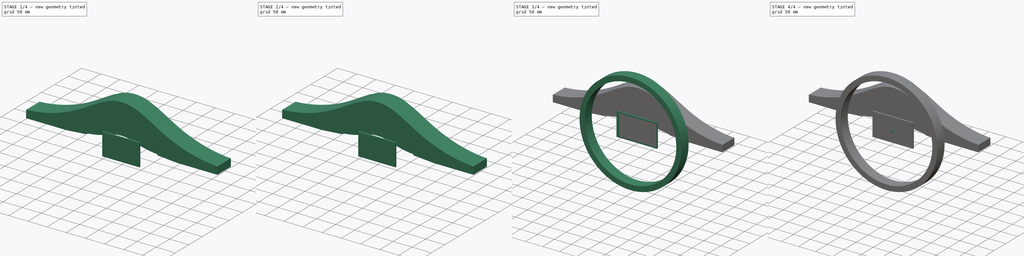
[diagram: build sequence overview — one tinted view per stage of 4, left to right]
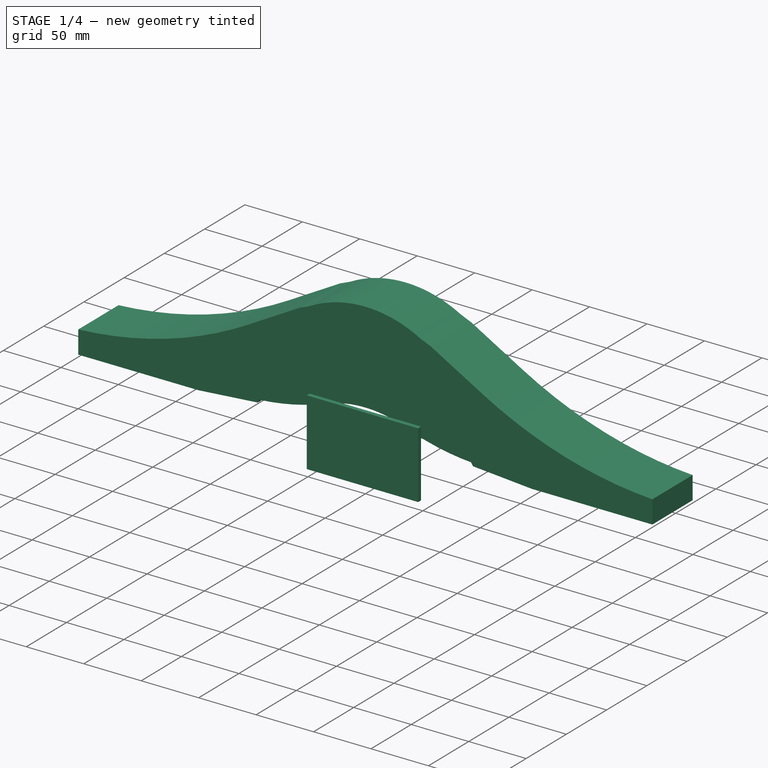
[diagram: stage 1 of 4 — iso view after this stage's code; geometry added in this stage tinted green]
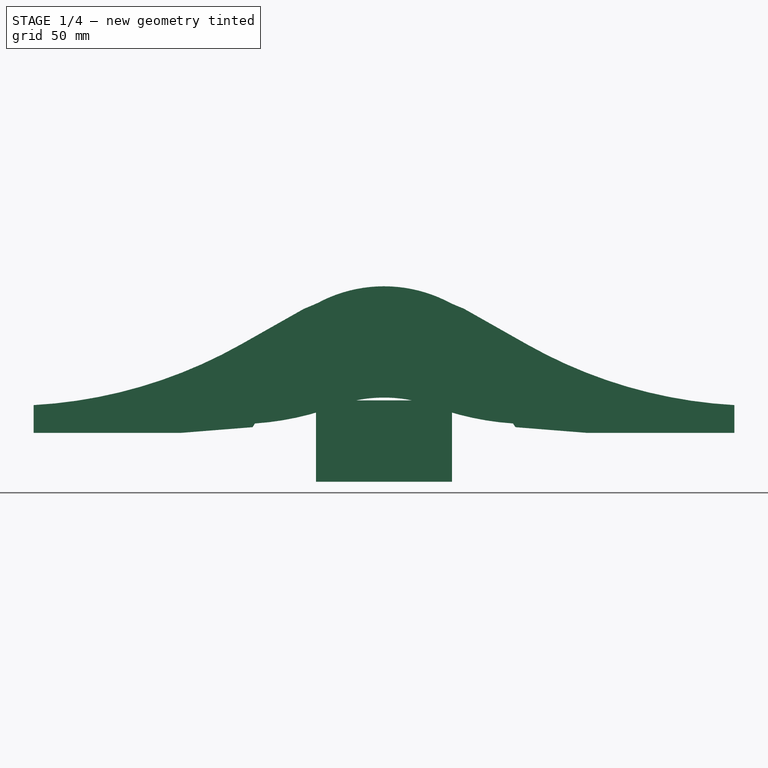
[diagram: stage 1 of 4 — front view after this stage's code; geometry added in this stage tinted green]
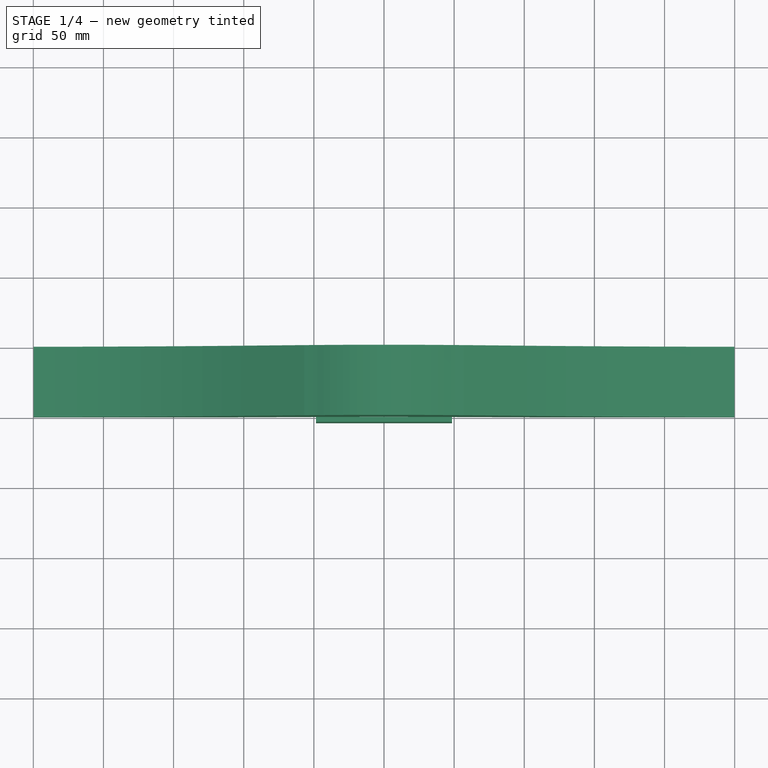
[diagram: stage 1 of 4 — top view after this stage's code; geometry added in this stage tinted green]
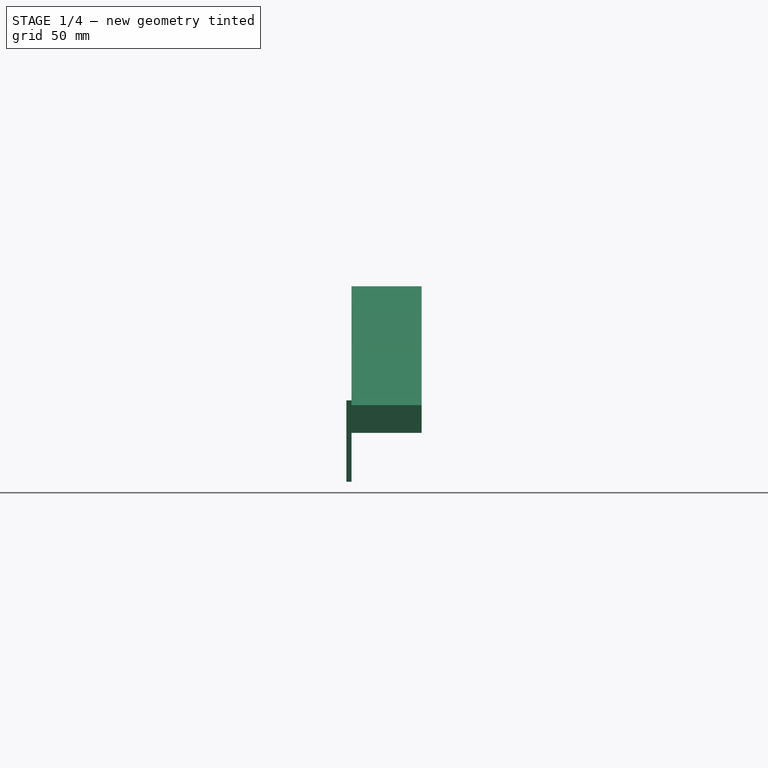
[diagram: stage 1 of 4 — right view after this stage's code; geometry added in this stage tinted green]
FCSTD DOCUMENT  (FreeCAD 0.20R29177 (Git))
Label: Dashboard_Ultimate
License: All rights reserved
LicenseURL: http://en.wikipedia.org/wiki/All_rights_reserved
objects: Sketcher::SketchObject×9, PartDesign::Pad×8, PartDesign::Body×6, PartDesign::FeatureBase×2, Image::ImagePlane×1, Spreadsheet::Sheet×1, App::DocumentObjectGroup×1
note: 33 computed .brp shape members not serialized (recipe doc carries the construction recipe); baked Part::Feature solids carry a one-line shape summary decoded from their .brp

FEATURE [PartDesign::Body] Body006  label="Wheel"
  Group = -> [Sketch034,Pad016]
  Origin = -> Origin006
  Placement = pos=(0,-64,0) rot=(0,0,1;0rad)
  Tip = -> Pad016
FEATURE [Sketcher::SketchObject] Sketch035  label="sk_display001"
  FullyConstrained = true
  MapMode = 5
  Placement = pos=(0,0,0) rot=(1,0,0;1.5708rad)
  Support = -> [XZ_Plane007]
  expr: Constraints[8] = <<Spreadsheet>>.display_width_4
  expr: Constraints[9] = <<Spreadsheet>>.display_height_4
  sketch-geometry (4):
    g0: LineSegment StartX=-48.5 StartY=29 StartZ=0 EndX=48.5 EndY=29 EndZ=0
    g1: LineSegment StartX=48.5 StartY=29 StartZ=0 EndX=48.5 EndY=-29 EndZ=0
    g2: LineSegment StartX=48.5 StartY=-29 StartZ=0 EndX=-48.5 EndY=-29 EndZ=0
    g3: LineSegment StartX=-48.5 StartY=-29 StartZ=0 EndX=-48.5 EndY=29 EndZ=0
  constraints (11):
    c: Coincident(g0,g1)
    c: Coincident(g1,g2)
    c: Coincident(g2,g3)
    c: Coincident(g3,g0)
    c: Horizontal(g0)
    c: Horizontal(g2)
    c: Vertical(g1)
    c: Vertical(g3)
    c: DistanceX(g0,g0) = 97
    c: DistanceY(g1,g1) = 58
    c: Symmetric(g0,g1,g-1)
FEATURE [Sketcher::SketchObject] Sketch036  label="sk_screen001"
  AttachmentOffset = pos=(0,0,3.5) rot=(0,0,1;0rad)
  ExternalGeometry = -> [Sketch035]
  FullyConstrained = true
  MapMode = 5
  Placement = pos=(0,-3.5,8e-16) rot=(1,0,0;1.5708rad)
  Support = -> [XZ_Plane007]
  expr: Constraints[10] = <<Spreadsheet>>.screen_offset_left_4
  expr: Constraints[7] = <<Spreadsheet>>.screen_width_4
  expr: Constraints[8] = <<Spreadsheet>>.screen_height_4
  sketch-geometry (4):
    g0: LineSegment StartX=-43.5 StartY=26.5 StartZ=0 EndX=42.5 EndY=26.5 EndZ=0
    g1: LineSegment StartX=42.5 StartY=26.5 StartZ=0 EndX=42.5 EndY=-26.5 EndZ=0
    g2: LineSegment StartX=42.5 StartY=-26.5 StartZ=0 EndX=-43.5 EndY=-26.5 EndZ=0
    g3: LineSegment StartX=-43.5 StartY=-26.5 StartZ=0 EndX=-43.5 EndY=26.5 EndZ=0
  constraints (11):
    c: Coincident(g0,g1)
    c: Coincident(g1,g2)
    c: Coincident(g2,g3)
    c: Coincident(g3,g0)
    c: Horizontal(g0)
    c: Horizontal(g2)
    c: Vertical(g1)
    c: DistanceX(g0,g0) = 86
    c: DistanceY(g1,g1) = 53
    c: Symmetric(g0,g2,g-1)
    c: DistanceX(g-3,g0) = 5
FEATURE [PartDesign::Pad] Pad
  Direction = (0,-1,2e-16)
  Length = 3.6
  Length2 = 10
  Placement = pos=(0,0,0) rot=(1,0,0;1.5708rad)
  Profile = -> Sketch035
  ReferenceAxis = -> Sketch035 [N_Axis]
  Refine = true
  Type = 0
FEATURE [PartDesign::Body] Body009  label="C_VoCore_4inch_right"
  Group = -> [Clone001]
  Origin = -> Origin009
  Placement = pos=(110,0,73) rot=(0,0,1;0rad)
  Tip = -> Clone001
FEATURE [App::DocumentObjectGroup] Group  label="G_VoCore_4inch"
  Group = -> [Body008,Body009,Body007]
FEATURE [PartDesign::Pad] Pad018
  Direction = (0,-1,2e-16)
  Length = 50
  Length2 = 10
  Placement = pos=(0,0,0) rot=(1,0,0;1.5708rad)
  Profile = -> Sketch
  ReferenceAxis = -> Sketch [N_Axis]
  Refine = true
  Reversed = true
  Type = 0
FEATURE [PartDesign::Body] Body
  Group = -> [Sketch,Sketch010,Pad018]
  Origin = -> Origin
  Placement = pos=(0,0,48.2) rot=(0,0,1;0rad)
  Tip = -> Pad018
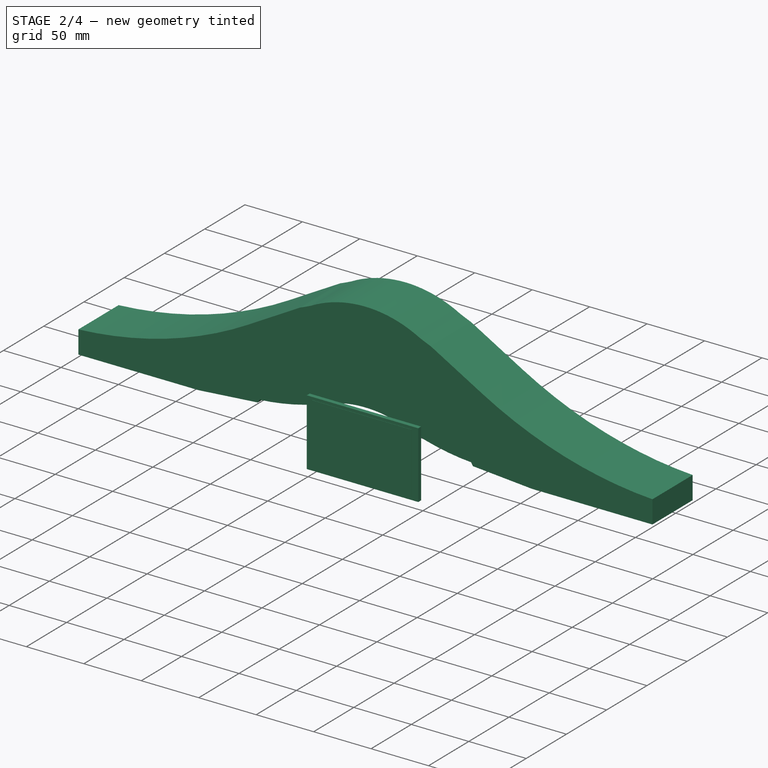
[diagram: stage 2 of 4 — iso view after this stage's code; geometry added in this stage tinted green]
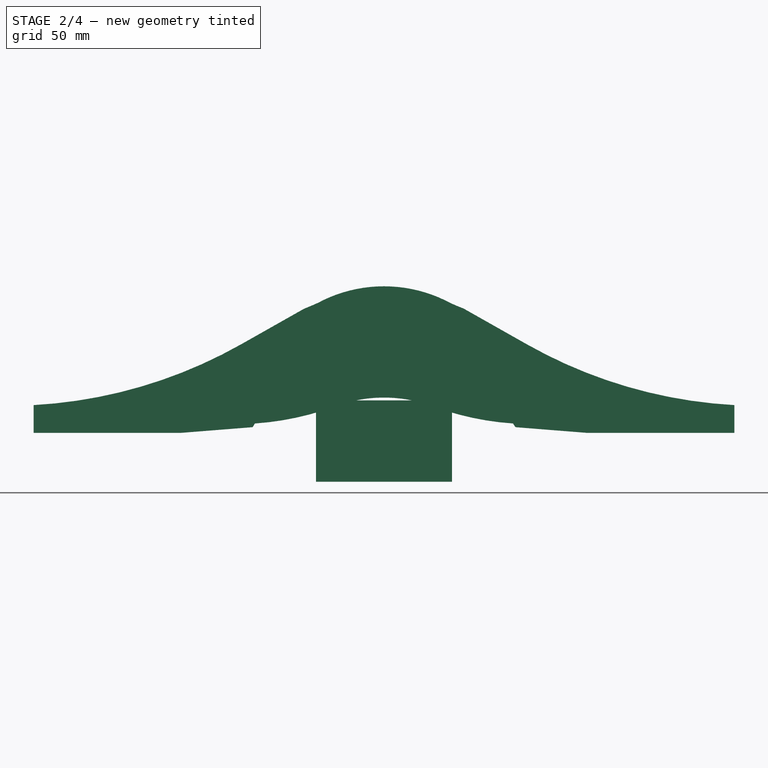
[diagram: stage 2 of 4 — front view after this stage's code; geometry added in this stage tinted green]
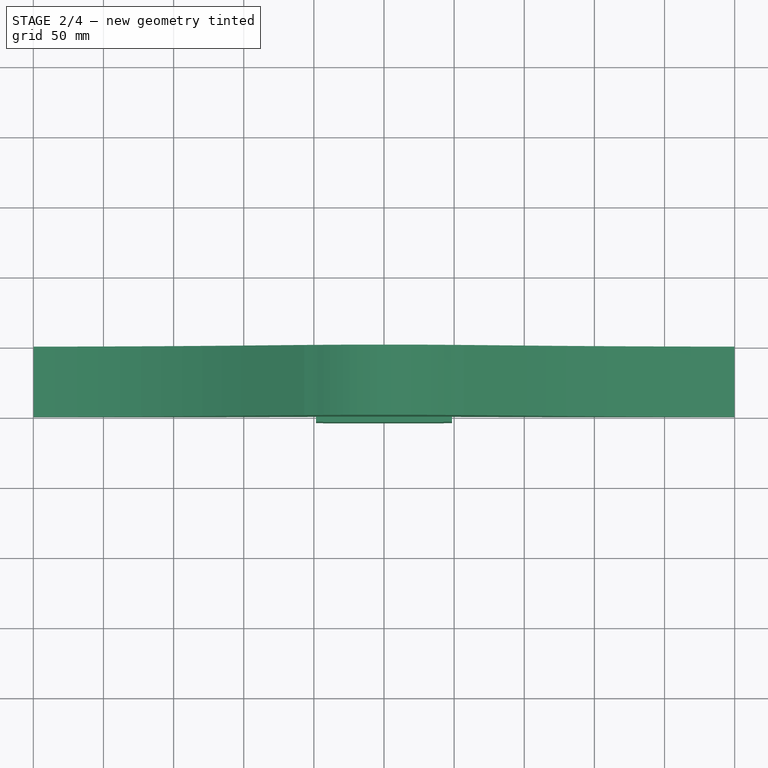
[diagram: stage 2 of 4 — top view after this stage's code; geometry added in this stage tinted green]
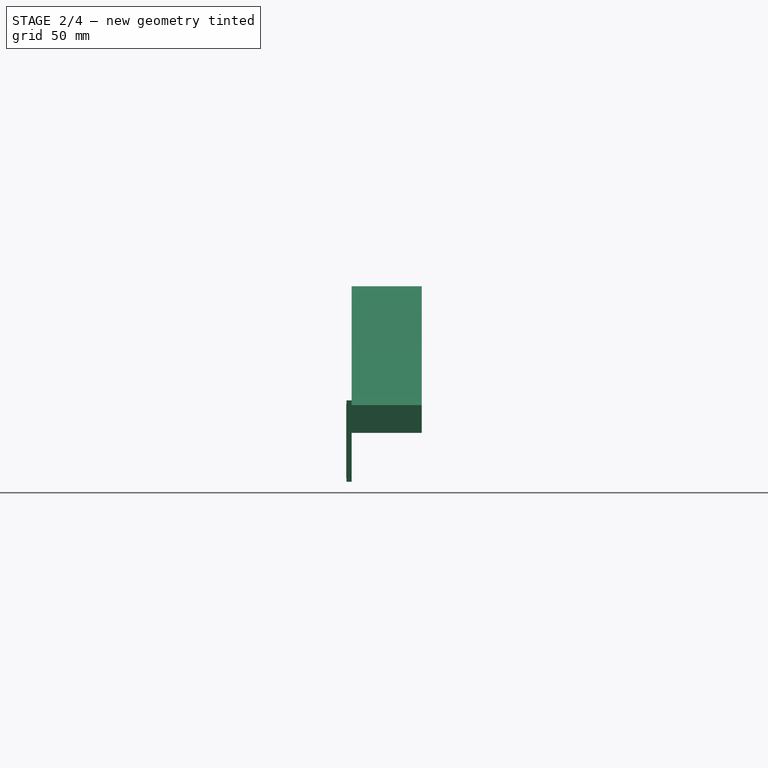
[diagram: stage 2 of 4 — right view after this stage's code; geometry added in this stage tinted green]
FEATURE [PartDesign::Pad] Pad017
  BaseFeature = -> Pad
  Direction = (0,-1,2e-16)
  Length = 0.3
  Length2 = 10
  Placement = pos=(0,0,0) rot=(1,0,0;1.5708rad)
  Profile = -> Sketch036
  ReferenceAxis = -> Sketch036 [N_Axis]
  Refine = true
  Type = 0
FEATURE [PartDesign::Body] Body007  label="VoCore_4inch"
  Group = -> [Sketch035,Sketch036,Pad,Pad017]
  Origin = -> Origin007
  Tip = -> Pad017
FEATURE [PartDesign::FeatureBase] Clone
  BaseFeature = -> Body007
FEATURE [PartDesign::Body] Body008  label="C_VoCore_4inch_left"
  Group = -> [Clone]
  Origin = -> Origin008
  Placement = pos=(-110,0,73) rot=(0,0,1;0rad)
  Tip = -> Clone
FEATURE [PartDesign::FeatureBase] Clone001
  BaseFeature = -> Body007
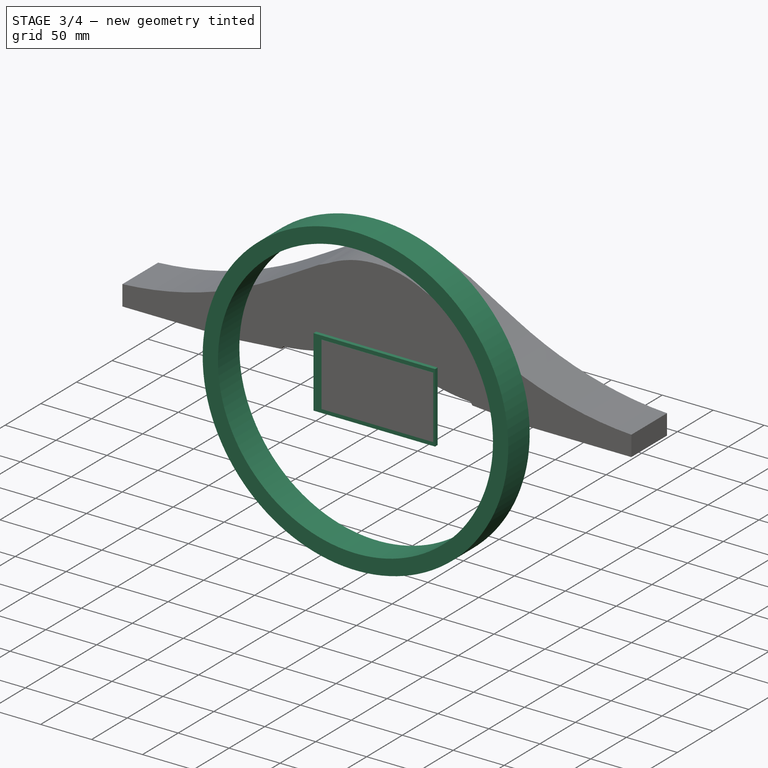
[diagram: stage 3 of 4 — iso view after this stage's code; geometry added in this stage tinted green]
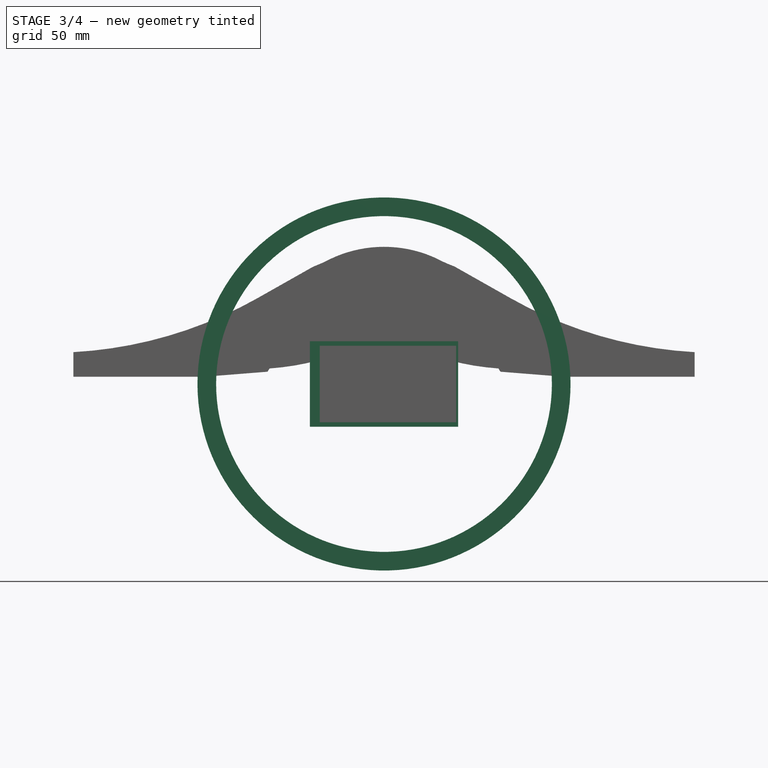
[diagram: stage 3 of 4 — front view after this stage's code; geometry added in this stage tinted green]
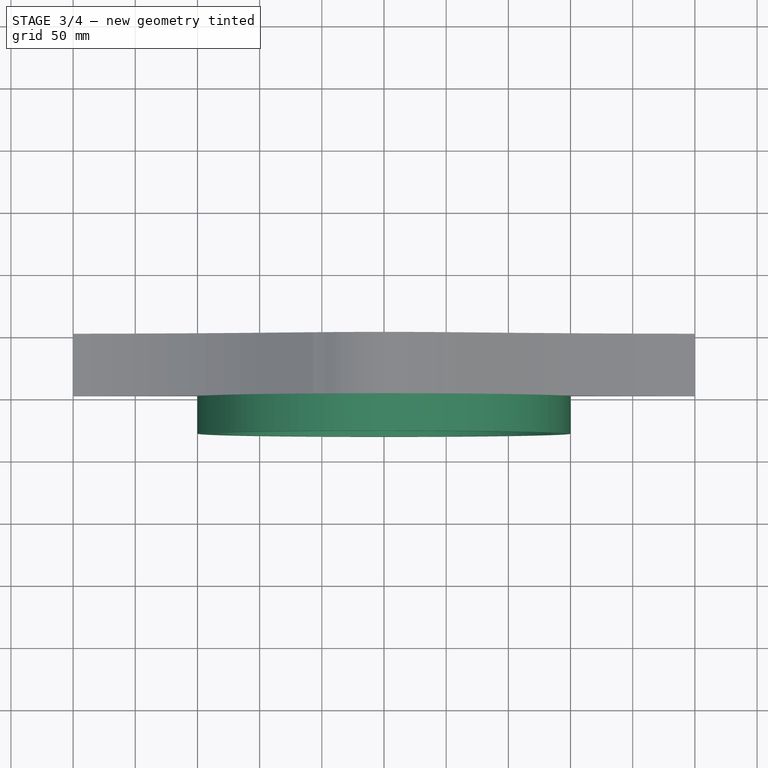
[diagram: stage 3 of 4 — top view after this stage's code; geometry added in this stage tinted green]
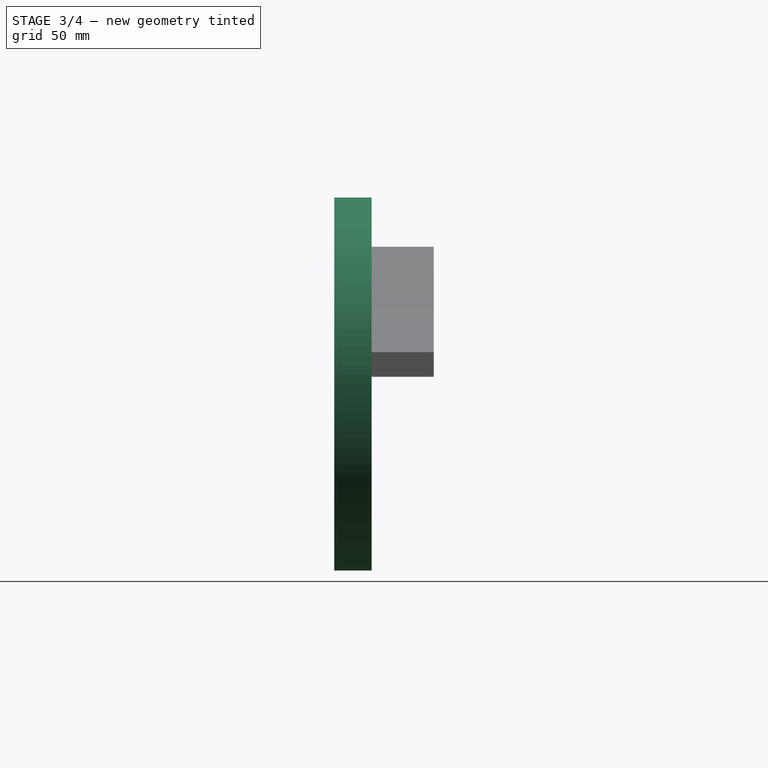
[diagram: stage 3 of 4 — right view after this stage's code; geometry added in this stage tinted green]
FEATURE [Sketcher::SketchObject] Sketch010  label="sk_mount_plate001"
  FullyConstrained = true
  MapMode = 5
  Placement = pos=(0,0,0) rot=(1,0,0;1.5708rad)
  Support = -> [XZ_Plane]
  sketch-geometry (14):
    g0: Circle CenterX=-28 CenterY=0 CenterZ=0 NormalX=0 NormalY=0 NormalZ=1 AngleXU=0 Radius=3
    g1: Circle CenterX=28 CenterY=0 CenterZ=0 NormalX=0 NormalY=0 NormalZ=1 AngleXU=0 Radius=3
    g2: Circle CenterX=-50 CenterY=0 CenterZ=0 NormalX=0 NormalY=0 NormalZ=1 AngleXU=0 Radius=5
    g3: Circle CenterX=50 CenterY=0 CenterZ=0 NormalX=0 NormalY=0 NormalZ=1 AngleXU=0 Radius=5
    g4: LineSegment StartX=-50 StartY=0 StartZ=0 EndX=50 EndY=0 EndZ=0
    g5: ArcOfCircle CenterX=1.69e-14 CenterY=-69 CenterZ=0 NormalX=0 NormalY=0 NormalZ=1 AngleXU=0 Radius=100 StartAngle=1.21654 EndAngle=1.92505
    g6: ArcOfCircle CenterX=106.026 CenterY=217.668 CenterZ=0 NormalX=0 NormalY=0 NormalZ=1 AngleXU=0 Radius=205.647 StartAngle=4.35814 EndAngle=4.64413
    g7: GeomPoint X=0 Y=31 Z=0
    g8: LineSegment StartX=28 StartY=0 StartZ=0 EndX=28 EndY=27 EndZ=0
    g9: LineSegment StartX=50 StartY=0 StartZ=0 EndX=50 EndY=19.8 EndZ=0
    g10: ArcOfCircle CenterX=-106.026 CenterY=217.668 CenterZ=0 NormalX=0 NormalY=0 NormalZ=1 AngleXU=0 Radius=205.647 StartAngle=4.78065 EndAngle=5.06664
    g11: LineSegment StartX=-50 StartY=0 StartZ=0 EndX=-50 EndY=19.8 EndZ=0
    g12: LineSegment StartX=-92 StartY=12.5 StartZ=0 EndX=-92 EndY=0 EndZ=0
    g13: LineSegment StartX=92 StartY=12.5 StartZ=0 EndX=92 EndY=0 EndZ=0
  constraints (39):
    c: DistanceX(g0,g1) = 56  'mount_holes_distance'
    c: Symmetric(g0,g1,g-2)
    c: Equal(g0,g1)
    c: Diameter(g0) = 6  'mount_holes_diameter'
    c: Equal(g2,g3)
    c: Diameter(g2) = 10  'motor_mount_holes_diameter'
    c: Symmetric(g2,g3,g-2)
    c: Coincident(g4,g2)
    c: Coincident(g4,g3)
    c: PointOnObject(g0,g4)
    c: PointOnObject(g-1,g4)
    c: Symmetric(g5,g5,g-2)
    c: Coincident(g6,g5)
    c: PointOnObject(g7,g5)
    c: PointOnObject(g7,g-2)
    c: DistanceY(g-1,g7) = 31
    c: Coincident(g8,g1)
    c: PointOnObject(g8,g5)
    c: Vertical(g8)
    c: Coincident(g9,g3)
    c: PointOnObject(g9,g6)
    c: Vertical(g9)
    c: DistanceY(g1,g8) = 27
    c: DistanceX(g2,g3) = 100
    c: DistanceY(g9,g9) = 19.8
    c: Coincident(g11,g2)
    c: PointOnObject(g11,g10)
    c: Vertical(g11)
    c: DistanceY(g11,g11) = 19.8
    c: Symmetric(g6,g10,g-2)
    c: Coincident(g12,g10)
    c: PointOnObject(g12,g-1)
    c: Vertical(g12)
    c: DistanceY(g12,g12) = 12.5
    c: DistanceX(g12,g-1) = 92
    c: Tangent(g10,g5) = 1.5708
    c: Coincident(g13,g6)
    c: PointOnObject(g13,g-1)
    c: Vertical(g13)
FEATURE [Sketcher::SketchObject] Sketch
  ExternalGeometry = -> [Sketch010]
  FullyConstrained = false
  MapMode = 5
  Placement = pos=(0,0,0) rot=(1,0,0;1.5708rad)
  Support = -> [XZ_Plane]
  sketch-geometry (18):
    g0: LineSegment StartX=-92 StartY=12.5 StartZ=0 EndX=-93.6713 EndY=9.88106 EndZ=0
    g1: LineSegment StartX=-93.6713 StartY=9.88106 StartZ=0 EndX=-145.227 EndY=5.78161 EndZ=0
    g2: LineSegment StartX=92 StartY=12.5 StartZ=0 EndX=93.6713 EndY=9.88106 EndZ=0
    g3: LineSegment StartX=93.6713 StartY=9.88106 StartZ=0 EndX=145.227 EndY=5.78161 EndZ=0
    g4: ArcOfCircle CenterX=-106.026 CenterY=217.668 CenterZ=0 NormalX=0 NormalY=0 NormalZ=1 AngleXU=0 Radius=205.647 StartAngle=4.78065 EndAngle=5.06664
    g5: ArcOfCircle CenterX=1.48e-14 CenterY=-69 CenterZ=0 NormalX=0 NormalY=0 NormalZ=1 AngleXU=0 Radius=100 StartAngle=1.21654 EndAngle=1.92505
    g6: ArcOfCircle CenterX=106.026 CenterY=217.668 CenterZ=0 NormalX=0 NormalY=0 NormalZ=1 AngleXU=0 Radius=205.647 StartAngle=4.35814 EndAngle=4.64413
    g7: ArcOfCircle CenterX=6.9e-15 CenterY=10.319 CenterZ=0 NormalX=0 NormalY=0 NormalZ=1 AngleXU=0 Radius=100 StartAngle=1.07673 EndAngle=2.06486
    g8: ArcOfCircle CenterX=131.768 CenterY=285.913 CenterZ=0 NormalX=0 NormalY=0 NormalZ=1 AngleXU=0 Radius=205.647 StartAngle=4.28976 EndAngle=4.33956
    g9: ArcOfCircle CenterX=-131.768 CenterY=285.913 CenterZ=0 NormalX=0 NormalY=0 NormalZ=1 AngleXU=0 Radius=205.647 StartAngle=5.08522 EndAngle=5.13502
    g10: LineSegment StartX=56.8609 StartY=94.3944 StartZ=0 EndX=101.929 EndY=68.9168 EndZ=0
    g11: LineSegment StartX=-56.8609 StartY=94.3944 StartZ=0 EndX=-101.929 EndY=68.9168 EndZ=0
    g12: ArcOfCircle CenterX=268.475 CenterY=363.527 CenterZ=0 NormalX=0 NormalY=0 NormalZ=1 AngleXU=0 Radius=338.427 StartAngle=4.19787 EndAngle=4.65718
    g13: ArcOfCircle CenterX=-268.475 CenterY=363.527 CenterZ=0 NormalX=0 NormalY=0 NormalZ=1 AngleXU=0 Radius=338.427 StartAngle=4.7676 EndAngle=5.22691
    g14: LineSegment StartX=-145.227 StartY=5.78161 StartZ=0 EndX=-249.8 EndY=5.78161 EndZ=0
    g15: LineSegment StartX=-249.8 StartY=5.78161 StartZ=0 EndX=-249.8 EndY=25.616 EndZ=0
    g16: LineSegment StartX=145.227 StartY=5.78161 StartZ=0 EndX=249.8 EndY=5.78161 EndZ=0
    g17: LineSegment StartX=249.8 StartY=5.78161 StartZ=0 EndX=249.8 EndY=25.616 EndZ=0
  constraints (38):
    c: Coincident(g0,g-4)
    c: Coincident(g1,g0)
    c: Coincident(g2,g-5)
    c: Coincident(g3,g2)
    c: Symmetric(g3,g1,g-2)
    c: Symmetric(g0,g2,g-2)
    c: Coincident(g4,g0)
    c: Coincident(g4,g-4)
    c: Coincident(g5,g4)
    c: Coincident(g5,g-5)
    c: Coincident(g6,g5)
    c: Coincident(g6,g2)
    c: Equal(g4,g-4)
    c: Equal(g6,g-5)
    c: Equal(g5,g-3)
    c: Coincident(g8,g7)
    c: Coincident(g9,g7)
    c: Equal(g7,g5)
    c: Equal(g9,g4)
    c: Equal(g8,g6)
    c: Symmetric(g7,g7,g-2)
    c: Symmetric(g8,g9,g-2)
    c: Coincident(g10,g8)
    c: Coincident(g11,g9)
    c: Symmetric(g10,g11,g-2)
    c: Tangent(g12,g10) = -1.5708
    c: Symmetric(g13,g12,g-2)
    c: Tangent(g13,g11) = 1.5708
    c: Coincident(g14,g1)
    c: Horizontal(g14)
    c: Coincident(g15,g14)
    c: Coincident(g15,g13)
    c: Vertical(g15)
    c: Coincident(g16,g3)
    c: Horizontal(g16)
    c: Coincident(g17,g16)
    c: Coincident(g17,g12)
    c: Vertical(g17)
FEATURE [Image::ImagePlane] ImagePlane
  Placement = pos=(1.2,1,4.1) rot=(-1,0,0;4.71239rad)
  XSize = 320.453
  YSize = 166.959
FEATURE [Spreadsheet::Sheet] Spreadsheet
  cells = A2=display_width; B2(display_width)=119.3; D2=display_width_4; E2(display_width_4)=97; A3=display_height; B3(display_height)=68.7; D3=display_height_4; E3(display_height_4)=58; A4=display_depth; B4(display_depth)=3.6; D4=display_depth_4; E4(display_depth_4)=3.8; A5=screen_width; B5(screen_width)=109.6; D5=screen_width_4; E5(screen_width_4)=86; A6=screen_height; B6(screen_height)=61.6; D6=screen_height_4; E6(screen_height_4)=53; A7=screen_offset_left; B7(screen_offset_left)=8; D7=screen_offset_left_4; E7(screen_offset_left_4)=5; A10=case_top_border_radius; B10(case_top_border_radius)=10; A11=case_middle_border_radius; B11(case_middle_border_radius)=5; A12=case_border_thickness; B12(case_border_thickness)=5; A15=case_height; B15(case_height)=99; A16=case_width_top; B16(case_width_top)=173.32; A17=case_width_bottom; B17(case_width_bottom)=146.51; A18=case_height_bottom; B18(case_height_bottom)=35.51; A19=case_top_radius; B19(case_top_radius)=320; A22=ref_leds_gap; B22(ref_leds_gap)=1.4; A23=ref_leds_width; B23(ref_leds_width)=6
FEATURE [Sketcher::SketchObject] Sketch002  label="sk_display"
  FullyConstrained = true
  MapMode = 5
  Placement = pos=(0,0,0) rot=(1,0,0;1.5708rad)
  Support = -> [XZ_Plane001]
  expr: Constraints[8] = <<Spreadsheet>>.display_width
  expr: Constraints[9] = <<Spreadsheet>>.display_height
  sketch-geometry (4):
    g0: LineSegment StartX=-59.65 StartY=34.35 StartZ=0 EndX=59.65 EndY=34.35 EndZ=0
    g1: LineSegment StartX=59.65 StartY=34.35 StartZ=0 EndX=59.65 EndY=-34.35 EndZ=0
    g2: LineSegment StartX=59.65 StartY=-34.35 StartZ=0 EndX=-59.65 EndY=-34.35 EndZ=0
    g3: LineSegment StartX=-59.65 StartY=-34.35 StartZ=0 EndX=-59.65 EndY=34.35 EndZ=0
  constraints (11):
    c: Coincident(g0,g1)
    c: Coincident(g1,g2)
    c: Coincident(g2,g3)
    c: Coincident(g3,g0)
    c: Horizontal(g0)
    c: Horizontal(g2)
    c: Vertical(g1)
    c: Vertical(g3)
    c: DistanceX(g0,g0) = 119.3
    c: DistanceY(g1,g1) = 68.7
    c: Symmetric(g0,g1,g-1)
FEATURE [Sketcher::SketchObject] Sketch003  label="sk_screen"
  AttachmentOffset = pos=(0,0,3.5) rot=(0,0,1;0rad)
  ExternalGeometry = -> [Sketch002]
  FullyConstrained = true
  MapMode = 5
  Placement = pos=(0,-3.5,-8e-16) rot=(1,0,0;1.5708rad)
  Support = -> [XZ_Plane001]
  expr: Constraints[10] = <<Spreadsheet>>.screen_offset_left
  expr: Constraints[7] = <<Spreadsheet>>.screen_width
  expr: Constraints[8] = <<Spreadsheet>>.screen_height
  sketch-geometry (4):
    g0: LineSegment StartX=-51.65 StartY=30.8 StartZ=0 EndX=57.95 EndY=30.8 EndZ=0
    g1: LineSegment StartX=57.95 StartY=30.8 StartZ=0 EndX=57.95 EndY=-30.8 EndZ=0
    g2: LineSegment StartX=57.95 StartY=-30.8 StartZ=0 EndX=-51.65 EndY=-30.8 EndZ=0
    g3: LineSegment StartX=-51.65 StartY=-30.8 StartZ=0 EndX=-51.65 EndY=30.8 EndZ=0
  constraints (11):
    c: Coincident(g0,g1)
    c: Coincident(g1,g2)
    c: Coincident(g2,g3)
    c: Coincident(g3,g0)
    c: Horizontal(g0)
    c: Horizontal(g2)
    c: Vertical(g1)
    c: DistanceX(g0,g0) = 109.6
    c: DistanceY(g1,g1) = 61.6
    c: Symmetric(g0,g2,g-1)
    c: DistanceX(g-3,g0) = 8
FEATURE [Sketcher::SketchObject] Sketch006
  ExternalGeometry = -> [Sketch003]
  FullyConstrained = false
  MapMode = 5
  Placement = pos=(0,0,0) rot=(1,0,0;1.5708rad)
  Support = -> [XZ_Plane001]
  sketch-geometry (3):
    g0: Circle CenterX=3.15 CenterY=2e-16 CenterZ=0 NormalX=0 NormalY=0 NormalZ=1 AngleXU=0 Radius=2.36505
    g1: LineSegment StartX=-51.65 StartY=30.8 StartZ=0 EndX=57.95 EndY=-30.8 EndZ=0
    g2: LineSegment StartX=-51.65 StartY=-30.8 StartZ=0 EndX=57.95 EndY=30.8 EndZ=0
  constraints (6):
    c: Coincident(g1,g-5)
    c: Coincident(g1,g-6)
    c: Coincident(g2,g-5)
    c: Coincident(g2,g-6)
    c: PointOnObject(g0,g2)
    c: PointOnObject(g0,g1)
FEATURE [Sketcher::SketchObject] Sketch004
  AttachmentOffset = pos=(0,0,-1) rot=(0,0,1;0rad)
  ExternalGeometry = -> [Sketch002]
  FullyConstrained = true
  MapMode = 5
  Placement = pos=(0,1,2e-16) rot=(1,0,0;1.5708rad)
  Support = -> [XZ_Plane001]
  sketch-geometry (4):
    g0: LineSegment StartX=-33.65 StartY=21.35 StartZ=0 EndX=-59.65 EndY=21.35 EndZ=0
    g1: LineSegment StartX=-59.65 StartY=21.35 StartZ=0 EndX=-59.65 EndY=-34.35 EndZ=0
    g2: LineSegment StartX=-59.65 StartY=-34.35 StartZ=0 EndX=-33.65 EndY=-34.35 EndZ=0
    g3: LineSegment StartX=-33.65 StartY=-34.35 StartZ=0 EndX=-33.65 EndY=21.35 EndZ=0
  constraints (11):
    c: Coincident(g0,g1)
    c: Coincident(g1,g2)
    c: Coincident(g2,g3)
    c: Coincident(g3,g0)
    c: Horizontal(g0)
    c: Horizontal(g2)
    c: Vertical(g1)
    c: Vertical(g3)
    c: DistanceX(g0,g0) = 26
    c: Coincident(g1,g-3)
    c: DistanceY(g0,g-3) = 13
FEATURE [PartDesign::Pad] Pad001  label="display"
  Direction = (0,-1,-2e-16)
  Length = 3.6
  Length2 = 10
  Placement = pos=(0,0,0) rot=(1,0,0;1.5708rad)
  Profile = -> Sketch002
  ReferenceAxis = -> Sketch002 [N_Axis]
  Refine = true
  Type = 0
FEATURE [PartDesign::Pad] Pad002  label="screen"
  BaseFeature = -> Pad001
  Direction = (0,-1,-2e-16)
  Length = 0.3
  Length2 = 10
  Placement = pos=(0,0,0) rot=(1,0,0;1.5708rad)
  Profile = -> Sketch003
  ReferenceAxis = -> Sketch003 [N_Axis]
  Refine = true
  Type = 0
FEATURE [PartDesign::Body] Body001  label="VoCore_5inch"
  Group = -> [Sketch002,Pad001,Sketch003,Pad002,Sketch004,Pad003,Sketch006,Pad004]
  Origin = -> Origin001
  Placement = pos=(0,0,77) rot=(0,0,1;0rad)
  Tip = -> Pad004
FEATURE [Sketcher::SketchObject] Sketch034
  FullyConstrained = true
  MapMode = 5
  Placement = pos=(0,0,0) rot=(1,0,0;1.5708rad)
  Support = -> [XZ_Plane006]
  sketch-geometry (2):
    g0: Circle CenterX=0 CenterY=0 CenterZ=0 NormalX=0 NormalY=0 NormalZ=1 AngleXU=0 Radius=150
    g1: Circle CenterX=0 CenterY=0 CenterZ=0 NormalX=0 NormalY=0 NormalZ=1 AngleXU=0 Radius=135
  constraints (4):
    c: Coincident(g0,g-1)
    c: Diameter(g0) = 300
    c: Coincident(g1,g0)
    c: Diameter(g1) = 270
FEATURE [PartDesign::Pad] Pad016
  Direction = (0,-1,-2e-16)
  Length = 30
  Length2 = 10
  Placement = pos=(0,0,0) rot=(1,0,0;1.5708rad)
  Profile = -> Sketch034
  ReferenceAxis = -> Sketch034 [N_Axis]
  Refine = true
  Type = 0
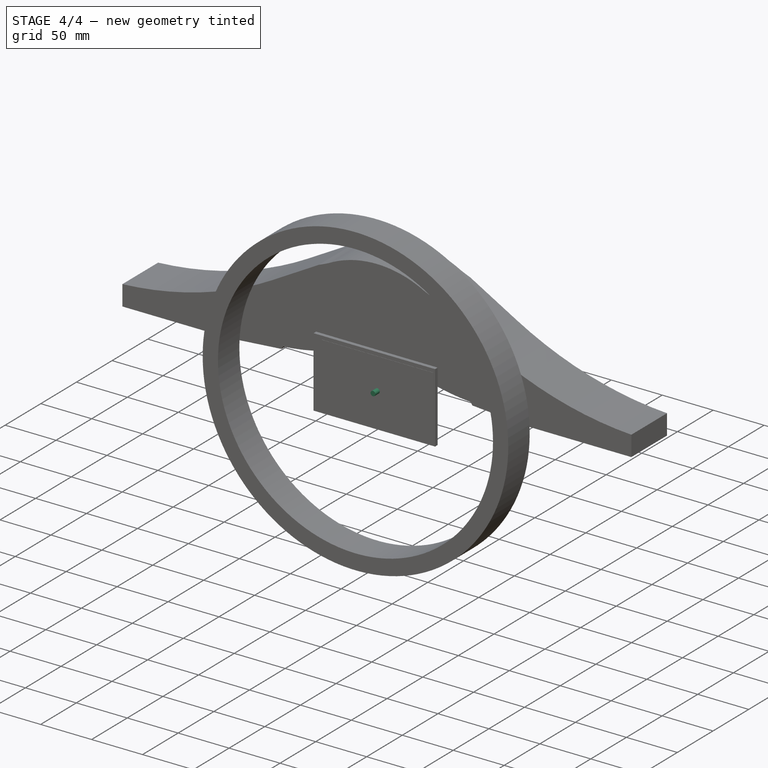
[diagram: stage 4 of 4 — iso view after this stage's code; geometry added in this stage tinted green]
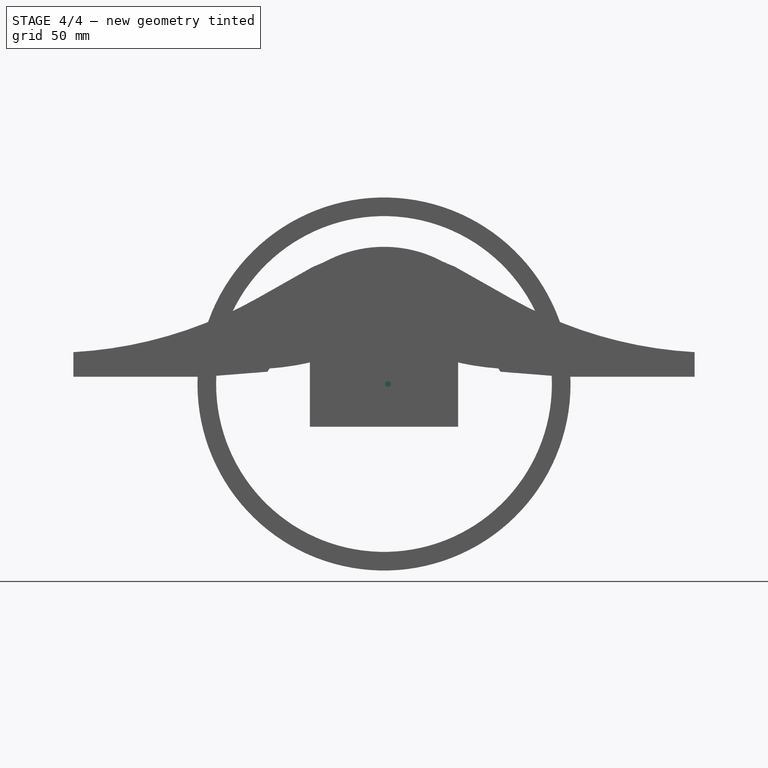
[diagram: stage 4 of 4 — front view after this stage's code; geometry added in this stage tinted green]
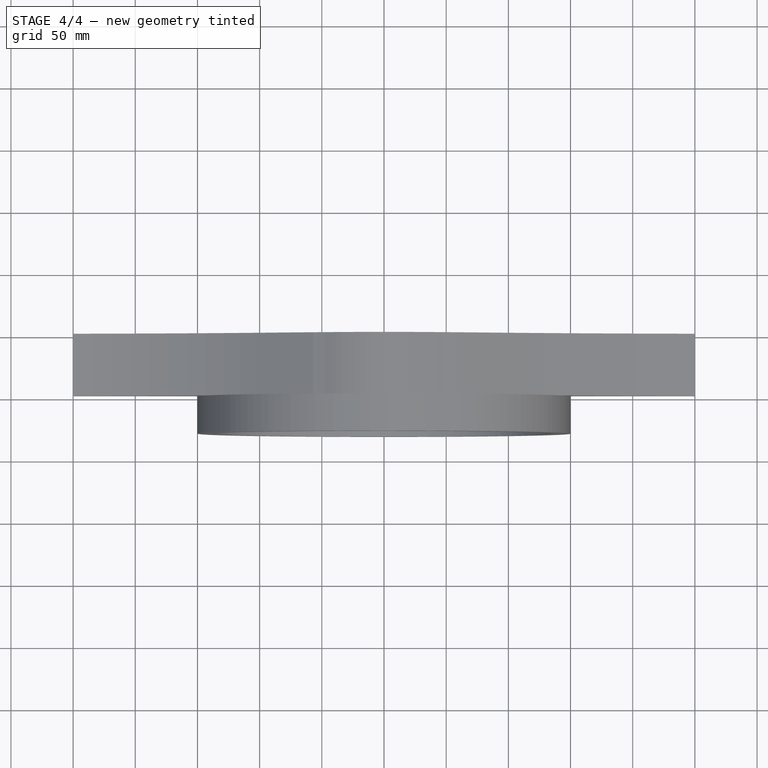
[diagram: stage 4 of 4 — top view after this stage's code; geometry added in this stage tinted green]
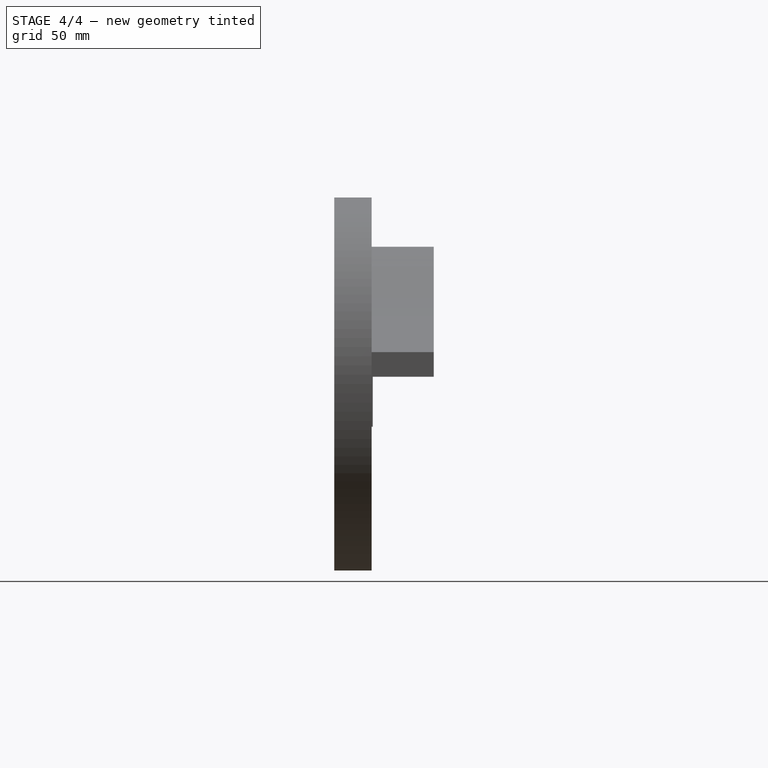
[diagram: stage 4 of 4 — right view after this stage's code; geometry added in this stage tinted green]
FEATURE [PartDesign::Pad] Pad003
  BaseFeature = -> Pad002
  Direction = (0,-1,-2e-16)
  Length = 1
  Length2 = 10
  Placement = pos=(0,0,0) rot=(1,0,0;1.5708rad)
  Profile = -> Sketch004
  ReferenceAxis = -> Sketch004 [N_Axis]
  Refine = true
  Type = 0
FEATURE [PartDesign::Pad] Pad004  label="center_marker"
  BaseFeature = -> Pad003
  Direction = (0,-1,-2e-16)
  Length = 10
  Length2 = 10
  Placement = pos=(0,0,0) rot=(1,0,0;1.5708rad)
  Profile = -> Sketch006
  ReferenceAxis = -> Sketch006 [N_Axis]
  Refine = true
  Type = 0
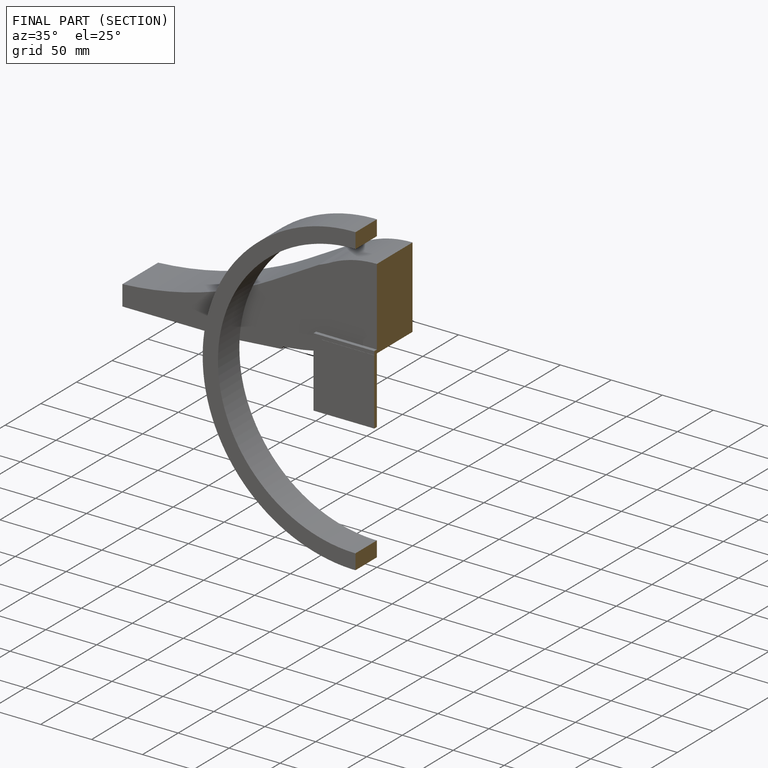
[diagram: finished part — half-section view (interior)]
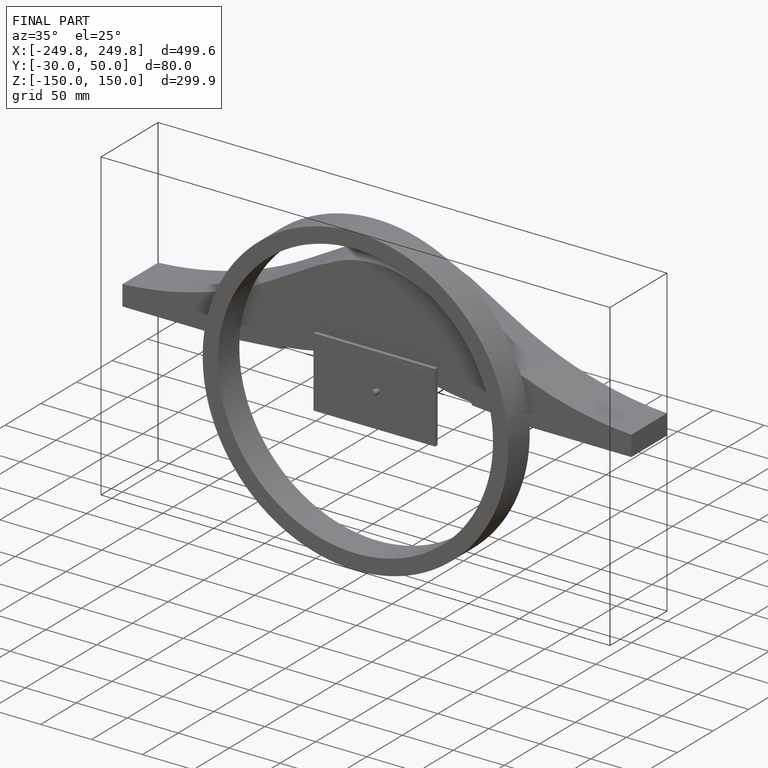
[diagram: finished part — iso view with bounding-box wireframe]
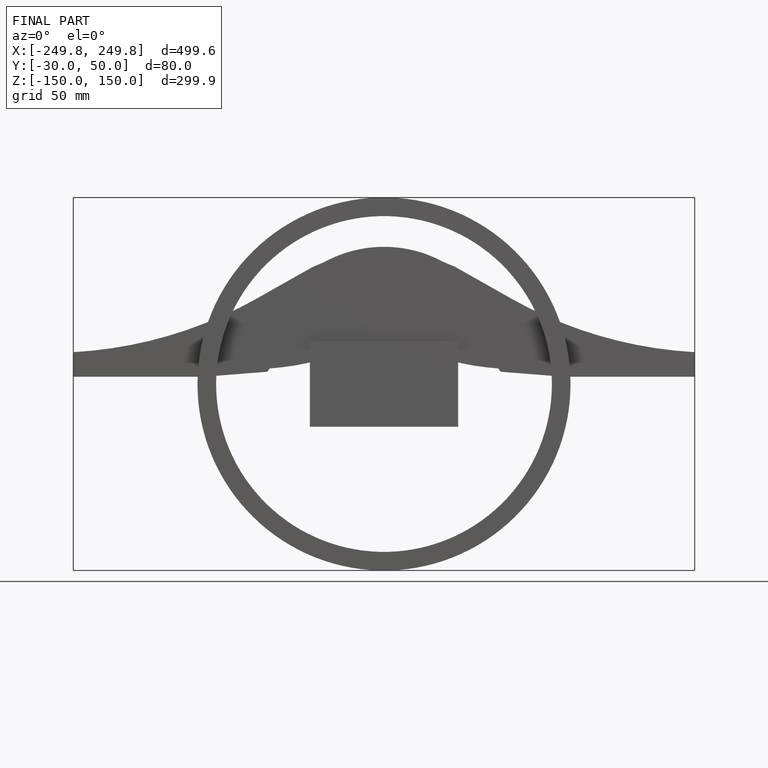
[diagram: finished part — front view with bounding-box wireframe]
